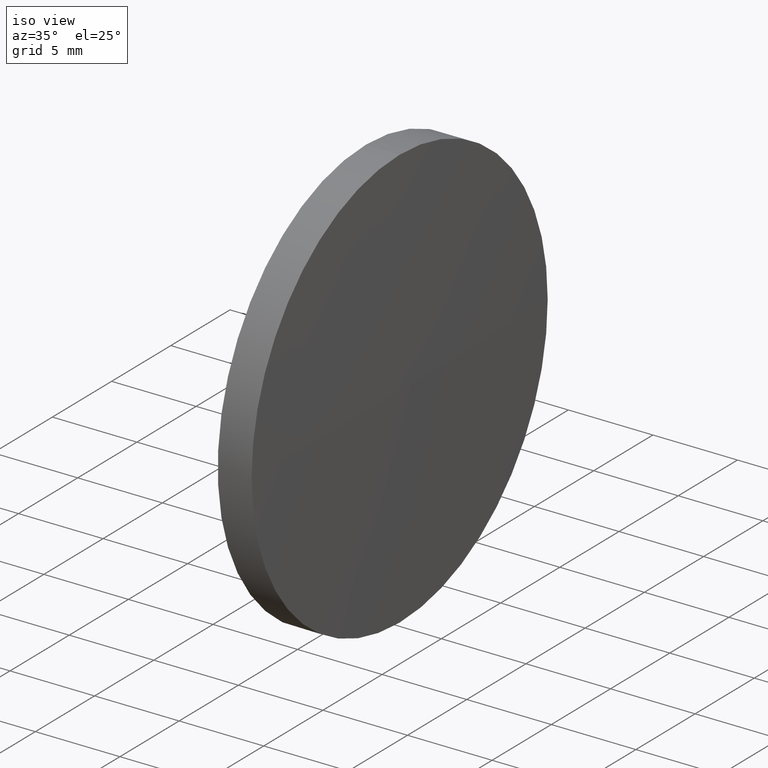
[diagram: clean part render]
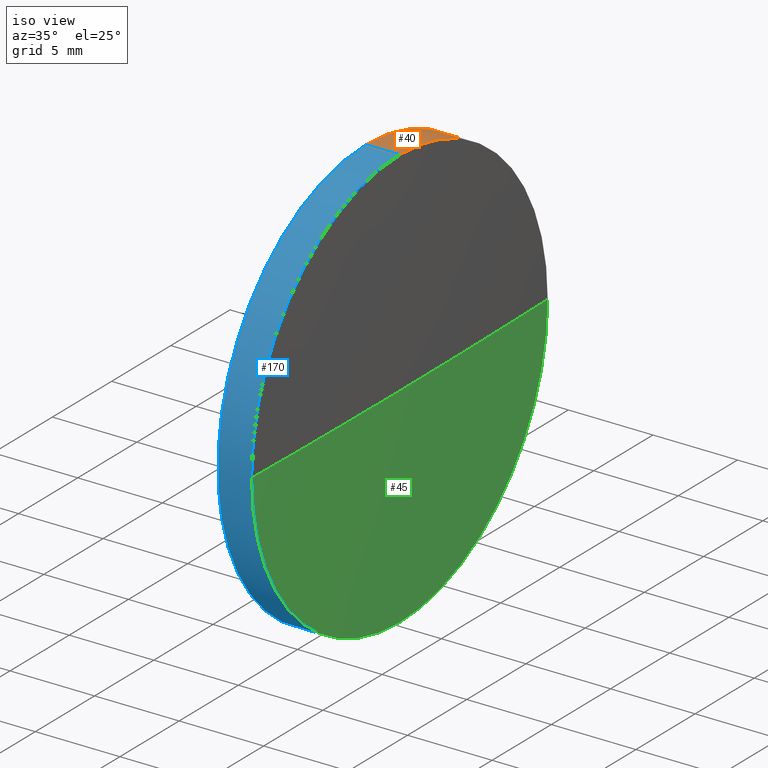
[diagram: same view with three faces highlighted in distinct colors, each labeled with its STEP entity id]
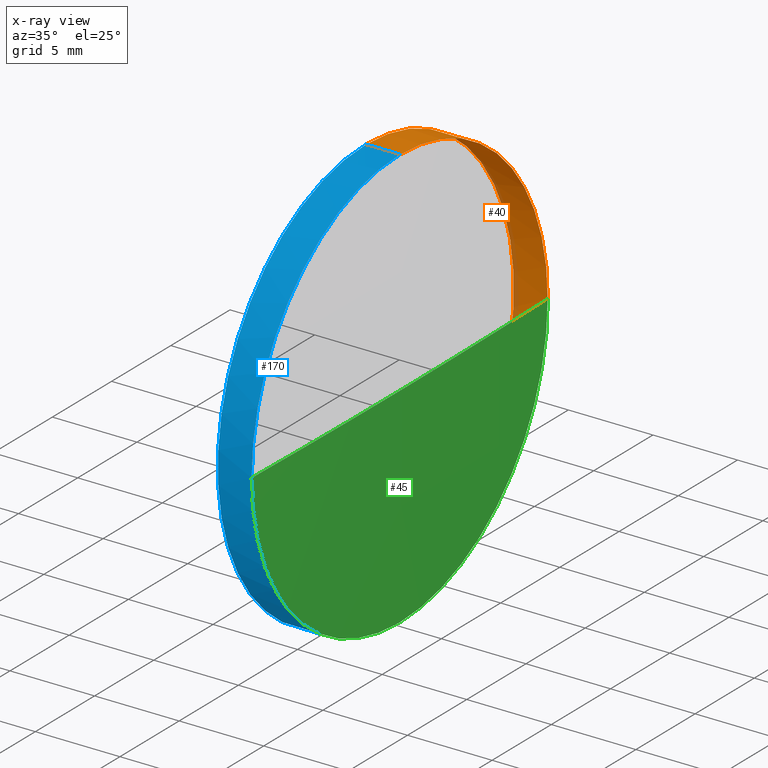
[diagram: x-ray of the same camera — body ghosted, the three highlighted faces saturated]
A machine part, iso view with three faces highlighted in distinct colors.
The next image is the same camera in x-ray (body ghosted, the three faces saturated) — at least one of them is partly hidden behind the body in this view.
Their STEP definitions:

[orange] entity #40 — the highlighted cylindrical surface (partial cylindrical patch) has radius 12.5 mm, axis along (-1, -0, -0).
#1 = CYLINDRICAL_SURFACE ( 'NONE', #9, 12.49999999999999600 ) ;
#2 = LINE ( 'NONE', #167, #177 ) ;
#6 = CARTESIAN_POINT ( 'NONE',  ( 342.9391285963631600, -50.57751368964579800, 0.0000000000000000000 ) ) ;
#8 = CARTESIAN_POINT ( 'NONE',  ( 338.9100210179261700, -50.57751368964579800, -12.49999999999999600 ) ) ;
#9 = AXIS2_PLACEMENT_3D ( 'NONE', #151, #165, #75 ) ;
#14 = EDGE_CURVE ( 'NONE', #138, #103, #2, .T. ) ;
#18 = CARTESIAN_POINT ( 'NONE',  ( 340.9391285963631600, -50.57751368964579800, 0.0000000000000000000 ) ) ;
#19 = CARTESIAN_POINT ( 'NONE',  ( 342.9391285963631600, -50.57751368964579800, -12.49999999999999600 ) ) ;
#24 = LINE ( 'NONE', #8, #86 ) ;
#31 = AXIS2_PLACEMENT_3D ( 'NONE', #6, #91, #133 ) ;
#34 = CIRCLE ( 'NONE', #31, 12.49999999999999600 ) ;
#38 = CARTESIAN_POINT ( 'NONE',  ( 340.9391285963631600, -50.57751368964579800, 12.49999999999999600 ) ) ;
#40 = ADVANCED_FACE ( 'NONE', ( #50 ), #1, .T. ) ;
#47 = VERTEX_POINT ( 'NONE', #19 ) ;
#49 = EDGE_LOOP ( 'NONE', ( #56, #186, #52, #160, #164 ) ) ;
#50 = FACE_OUTER_BOUND ( 'NONE', #49, .T. ) ;
#52 = ORIENTED_EDGE ( 'NONE', *, *, #88, .F. ) ;
#56 = ORIENTED_EDGE ( 'NONE', *, *, #176, .T. ) ;
#63 = DIRECTION ( 'NONE',  ( 0.0000000000000000000, 0.0000000000000000000, 1.000000000000000000 ) ) ;
#66 = DIRECTION ( 'NONE',  ( -1.000000000000000000, -0.0000000000000000000, -0.0000000000000000000 ) ) ;
#73 = EDGE_CURVE ( 'NONE', #138, #127, #34, .T. ) ;
#75 = DIRECTION ( 'NONE',  ( 0.0000000000000000000, 0.0000000000000000000, 1.000000000000000000 ) ) ;
#79 = CARTESIAN_POINT ( 'NONE',  ( 342.9391285963631600, -50.57751368964579800, 0.0000000000000000000 ) ) ;
#86 = VECTOR ( 'NONE', #158, 1000.000000000000000 ) ;
#88 = EDGE_CURVE ( 'NONE', #103, #109, #152, .T. ) ;
#91 = DIRECTION ( 'NONE',  ( -1.000000000000000000, -0.0000000000000000000, -0.0000000000000000000 ) ) ;
#99 = AXIS2_PLACEMENT_3D ( 'NONE', #79, #66, #116 ) ;
#103 = VERTEX_POINT ( 'NONE', #38 ) ;
#109 = VERTEX_POINT ( 'NONE', #180 ) ;
#114 = CARTESIAN_POINT ( 'NONE',  ( 342.9391285963631000, -38.07751368964586200, 1.530808498934047600E-015 ) ) ;
#116 = DIRECTION ( 'NONE',  ( 0.0000000000000000000, 0.0000000000000000000, 1.000000000000000000 ) ) ;
#127 = VERTEX_POINT ( 'NONE', #114 ) ;
#129 = AXIS2_PLACEMENT_3D ( 'NONE', #18, #153, #63 ) ;
#131 = EDGE_CURVE ( 'NONE', #47, #109, #24, .T. ) ;
#133 = DIRECTION ( 'NONE',  ( 0.0000000000000000000, 0.0000000000000000000, 1.000000000000000000 ) ) ;
#138 = VERTEX_POINT ( 'NONE', #185 ) ;
#151 = CARTESIAN_POINT ( 'NONE',  ( 338.9100210179261700, -50.57751368964579800, 0.0000000000000000000 ) ) ;
#152 = CIRCLE ( 'NONE', #129, 12.49999999999999600 ) ;
#153 = DIRECTION ( 'NONE',  ( -1.000000000000000000, -0.0000000000000000000, -0.0000000000000000000 ) ) ;
#158 = DIRECTION ( 'NONE',  ( -1.000000000000000000, -0.0000000000000000000, -0.0000000000000000000 ) ) ;
#160 = ORIENTED_EDGE ( 'NONE', *, *, #14, .F. ) ;
#164 = ORIENTED_EDGE ( 'NONE', *, *, #73, .T. ) ;
#165 = DIRECTION ( 'NONE',  ( -1.000000000000000000, -0.0000000000000000000, -0.0000000000000000000 ) ) ;
#166 = DIRECTION ( 'NONE',  ( -1.000000000000000000, -0.0000000000000000000, -0.0000000000000000000 ) ) ;
#167 = CARTESIAN_POINT ( 'NONE',  ( 338.9100210179261700, -50.57751368964579800, 12.49999999999999600 ) ) ;
#171 = CIRCLE ( 'NONE', #99, 12.49999999999999600 ) ;
#176 = EDGE_CURVE ( 'NONE', #127, #47, #171, .T. ) ;
#177 = VECTOR ( 'NONE', #166, 1000.000000000000000 ) ;
#180 = CARTESIAN_POINT ( 'NONE',  ( 340.9391285963631600, -50.57751368964579800, -12.49999999999999600 ) ) ;
#185 = CARTESIAN_POINT ( 'NONE',  ( 342.9391285963631600, -50.57751368964579800, 12.49999999999999600 ) ) ;
#186 = ORIENTED_EDGE ( 'NONE', *, *, #131, .T. ) ;

[blue] entity #170 — the highlighted cylindrical surface (partial cylindrical patch) has radius 12.5 mm, axis along (-1, -0, -0).
#2 = LINE ( 'NONE', #167, #177 ) ;
#8 = CARTESIAN_POINT ( 'NONE',  ( 338.9100210179261700, -50.57751368964579800, -12.49999999999999600 ) ) ;
#14 = EDGE_CURVE ( 'NONE', #138, #103, #2, .T. ) ;
#19 = CARTESIAN_POINT ( 'NONE',  ( 342.9391285963631600, -50.57751368964579800, -12.49999999999999600 ) ) ;
#20 = ORIENTED_EDGE ( 'NONE', *, *, #162, .T. ) ;
#21 = DIRECTION ( 'NONE',  ( -1.000000000000000000, -0.0000000000000000000, -0.0000000000000000000 ) ) ;
#24 = LINE ( 'NONE', #8, #86 ) ;
#28 = EDGE_CURVE ( 'NONE', #109, #103, #32, .T. ) ;
#32 = CIRCLE ( 'NONE', #107, 12.49999999999999600 ) ;
#36 = DIRECTION ( 'NONE',  ( 0.0000000000000000000, 0.0000000000000000000, 1.000000000000000000 ) ) ;
#38 = CARTESIAN_POINT ( 'NONE',  ( 340.9391285963631600, -50.57751368964579800, 12.49999999999999600 ) ) ;
#47 = VERTEX_POINT ( 'NONE', #19 ) ;
#53 = FACE_OUTER_BOUND ( 'NONE', #65, .T. ) ;
#54 = DIRECTION ( 'NONE',  ( -1.000000000000000000, -0.0000000000000000000, -0.0000000000000000000 ) ) ;
#55 = CARTESIAN_POINT ( 'NONE',  ( 342.9391285963631000, -63.07751368964461800, 0.0000000000000000000 ) ) ;
#58 = EDGE_CURVE ( 'NONE', #47, #80, #149, .T. ) ;
#59 = ORIENTED_EDGE ( 'NONE', *, *, #28, .F. ) ;
#60 = DIRECTION ( 'NONE',  ( 0.0000000000000000000, 0.0000000000000000000, 1.000000000000000000 ) ) ;
#65 = EDGE_LOOP ( 'NONE', ( #147, #70, #20, #85, #59 ) ) ;
#70 = ORIENTED_EDGE ( 'NONE', *, *, #58, .T. ) ;
#80 = VERTEX_POINT ( 'NONE', #55 ) ;
#85 = ORIENTED_EDGE ( 'NONE', *, *, #14, .T. ) ;
#86 = VECTOR ( 'NONE', #158, 1000.000000000000000 ) ;
#87 = AXIS2_PLACEMENT_3D ( 'NONE', #143, #111, #98 ) ;
#95 = DIRECTION ( 'NONE',  ( 0.0000000000000000000, 0.0000000000000000000, 1.000000000000000000 ) ) ;
#98 = DIRECTION ( 'NONE',  ( 0.0000000000000000000, 0.0000000000000000000, 1.000000000000000000 ) ) ;
#103 = VERTEX_POINT ( 'NONE', #38 ) ;
#107 = AXIS2_PLACEMENT_3D ( 'NONE', #155, #54, #60 ) ;
#109 = VERTEX_POINT ( 'NONE', #180 ) ;
#111 = DIRECTION ( 'NONE',  ( -1.000000000000000000, -0.0000000000000000000, -0.0000000000000000000 ) ) ;
#120 = AXIS2_PLACEMENT_3D ( 'NONE', #128, #21, #95 ) ;
#123 = DIRECTION ( 'NONE',  ( -1.000000000000000000, -0.0000000000000000000, -0.0000000000000000000 ) ) ;
#128 = CARTESIAN_POINT ( 'NONE',  ( 338.9100210179261700, -50.57751368964579800, 0.0000000000000000000 ) ) ;
#131 = EDGE_CURVE ( 'NONE', #47, #109, #24, .T. ) ;
#132 = CIRCLE ( 'NONE', #87, 12.49999999999999600 ) ;
#138 = VERTEX_POINT ( 'NONE', #185 ) ;
#143 = CARTESIAN_POINT ( 'NONE',  ( 342.9391285963631600, -50.57751368964579800, 0.0000000000000000000 ) ) ;
#147 = ORIENTED_EDGE ( 'NONE', *, *, #131, .F. ) ;
#149 = CIRCLE ( 'NONE', #154, 12.49999999999999600 ) ;
#150 = CARTESIAN_POINT ( 'NONE',  ( 342.9391285963631600, -50.57751368964579800, 0.0000000000000000000 ) ) ;
#154 = AXIS2_PLACEMENT_3D ( 'NONE', #150, #123, #36 ) ;
#155 = CARTESIAN_POINT ( 'NONE',  ( 340.9391285963631600, -50.57751368964579800, 0.0000000000000000000 ) ) ;
#158 = DIRECTION ( 'NONE',  ( -1.000000000000000000, -0.0000000000000000000, -0.0000000000000000000 ) ) ;
#162 = EDGE_CURVE ( 'NONE', #80, #138, #132, .T. ) ;
#166 = DIRECTION ( 'NONE',  ( -1.000000000000000000, -0.0000000000000000000, -0.0000000000000000000 ) ) ;
#167 = CARTESIAN_POINT ( 'NONE',  ( 338.9100210179261700, -50.57751368964579800, 12.49999999999999600 ) ) ;
#170 = ADVANCED_FACE ( 'NONE', ( #53 ), #175, .T. ) ;
#175 = CYLINDRICAL_SURFACE ( 'NONE', #120, 12.49999999999999600 ) ;
#177 = VECTOR ( 'NONE', #166, 1000.000000000000000 ) ;
#180 = CARTESIAN_POINT ( 'NONE',  ( 340.9391285963631600, -50.57751368964579800, -12.49999999999999600 ) ) ;
#185 = CARTESIAN_POINT ( 'NONE',  ( 342.9391285963631600, -50.57751368964579800, 12.49999999999999600 ) ) ;

[green] entity #45 — the highlighted spherical surface has radius 520.908 mm.
#5 = FACE_OUTER_BOUND ( 'NONE', #145, .T. ) ;
#12 = EDGE_CURVE ( 'NONE', #13, #80, #130, .T. ) ;
#13 = VERTEX_POINT ( 'NONE', #74 ) ;
#17 = CARTESIAN_POINT ( 'NONE',  ( -177.8192047369750000, -50.57751368964469000, 0.0000000000000000000 ) ) ;
#19 = CARTESIAN_POINT ( 'NONE',  ( 342.9391285963631600, -50.57751368964579800, -12.49999999999999600 ) ) ;
#23 = DIRECTION ( 'NONE',  ( 0.0000000000000000000, -1.000000000000000000, -1.224646799147353200E-016 ) ) ;
#35 = DIRECTION ( 'NONE',  ( 0.0000000000000000000, -1.000000000000000000, 0.0000000000000000000 ) ) ;
#36 = DIRECTION ( 'NONE',  ( 0.0000000000000000000, 0.0000000000000000000, 1.000000000000000000 ) ) ;
#37 = ORIENTED_EDGE ( 'NONE', *, *, #58, .F. ) ;
#45 = ADVANCED_FACE ( 'NONE', ( #5 ), #72, .T. ) ;
#47 = VERTEX_POINT ( 'NONE', #19 ) ;
#55 = CARTESIAN_POINT ( 'NONE',  ( 342.9391285963631000, -63.07751368964461800, 0.0000000000000000000 ) ) ;
#58 = EDGE_CURVE ( 'NONE', #47, #80, #149, .T. ) ;
#66 = DIRECTION ( 'NONE',  ( -1.000000000000000000, -0.0000000000000000000, -0.0000000000000000000 ) ) ;
#72 = SPHERICAL_SURFACE ( 'NONE', #178, 520.9083333333380800 ) ;
#74 = CARTESIAN_POINT ( 'NONE',  ( 343.0891285963630800, -50.57751368964471800, 0.0000000000000000000 ) ) ;
#77 = CARTESIAN_POINT ( 'NONE',  ( -177.8192047369750000, -50.57751368964469000, 0.0000000000000000000 ) ) ;
#79 = CARTESIAN_POINT ( 'NONE',  ( 342.9391285963631600, -50.57751368964579800, 0.0000000000000000000 ) ) ;
#80 = VERTEX_POINT ( 'NONE', #55 ) ;
#94 = DIRECTION ( 'NONE',  ( 0.0000000000000000000, -1.224646799147353200E-016, 1.000000000000000000 ) ) ;
#96 = AXIS2_PLACEMENT_3D ( 'NONE', #159, #94, #23 ) ;
#99 = AXIS2_PLACEMENT_3D ( 'NONE', #79, #66, #116 ) ;
#105 = ORIENTED_EDGE ( 'NONE', *, *, #12, .T. ) ;
#110 = DIRECTION ( 'NONE',  ( 0.0000000000000000000, 0.0000000000000000000, 1.000000000000000000 ) ) ;
#112 = CIRCLE ( 'NONE', #96, 520.9083333333380800 ) ;
#114 = CARTESIAN_POINT ( 'NONE',  ( 342.9391285963631000, -38.07751368964586200, 1.530808498934047600E-015 ) ) ;
#116 = DIRECTION ( 'NONE',  ( 0.0000000000000000000, 0.0000000000000000000, 1.000000000000000000 ) ) ;
#121 = EDGE_CURVE ( 'NONE', #13, #127, #112, .T. ) ;
#122 = DIRECTION ( 'NONE',  ( 0.0000000000000000000, 0.0000000000000000000, -1.000000000000000000 ) ) ;
#123 = DIRECTION ( 'NONE',  ( -1.000000000000000000, -0.0000000000000000000, -0.0000000000000000000 ) ) ;
#127 = VERTEX_POINT ( 'NONE', #114 ) ;
#130 = CIRCLE ( 'NONE', #169, 520.9083333333380800 ) ;
#137 = DIRECTION ( 'NONE',  ( -1.000000000000000000, 0.0000000000000000000, 0.0000000000000000000 ) ) ;
#141 = ORIENTED_EDGE ( 'NONE', *, *, #176, .F. ) ;
#145 = EDGE_LOOP ( 'NONE', ( #183, #105, #37, #141 ) ) ;
#149 = CIRCLE ( 'NONE', #154, 12.49999999999999600 ) ;
#150 = CARTESIAN_POINT ( 'NONE',  ( 342.9391285963631600, -50.57751368964579800, 0.0000000000000000000 ) ) ;
#154 = AXIS2_PLACEMENT_3D ( 'NONE', #150, #123, #36 ) ;
#159 = CARTESIAN_POINT ( 'NONE',  ( -177.8192047369750000, -50.57751368964469000, 0.0000000000000000000 ) ) ;
#169 = AXIS2_PLACEMENT_3D ( 'NONE', #17, #122, #137 ) ;
#171 = CIRCLE ( 'NONE', #99, 12.49999999999999600 ) ;
#176 = EDGE_CURVE ( 'NONE', #127, #47, #171, .T. ) ;
#178 = AXIS2_PLACEMENT_3D ( 'NONE', #77, #110, #35 ) ;
#183 = ORIENTED_EDGE ( 'NONE', *, *, #121, .F. ) ;